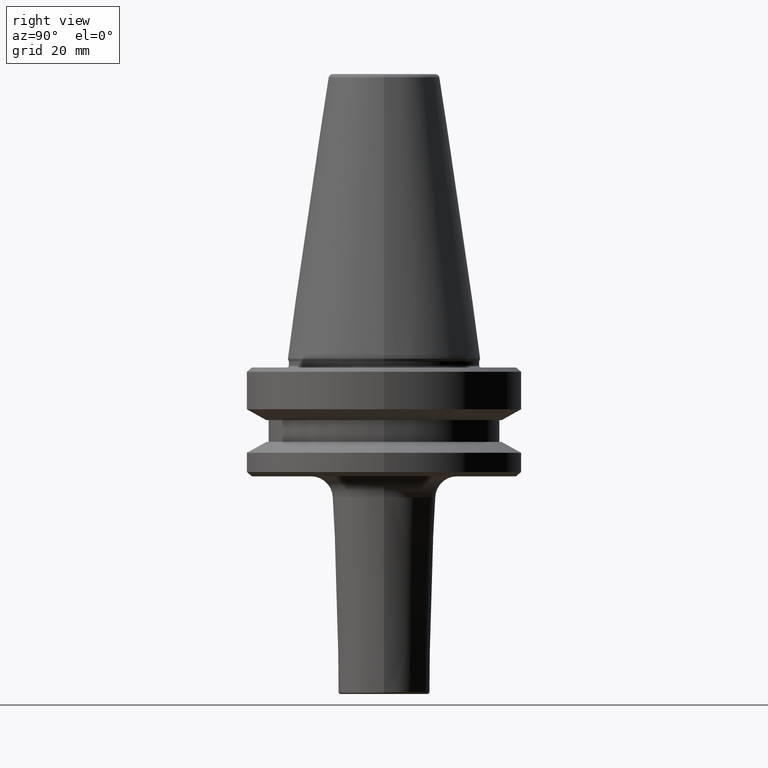
[diagram: clean part render]
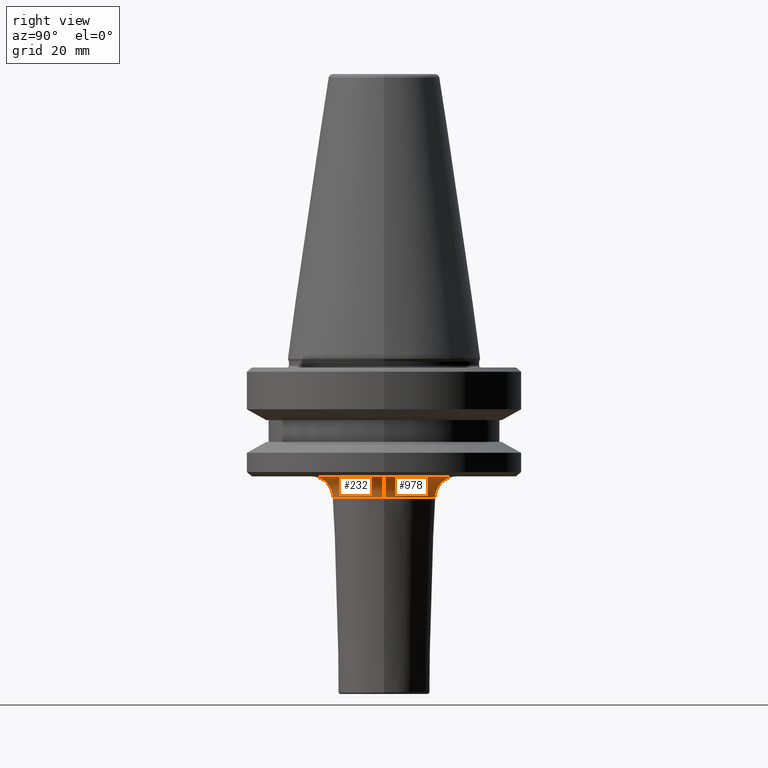
[diagram: same view with one multi-face feature highlighted, each face labeled with its STEP entity id]
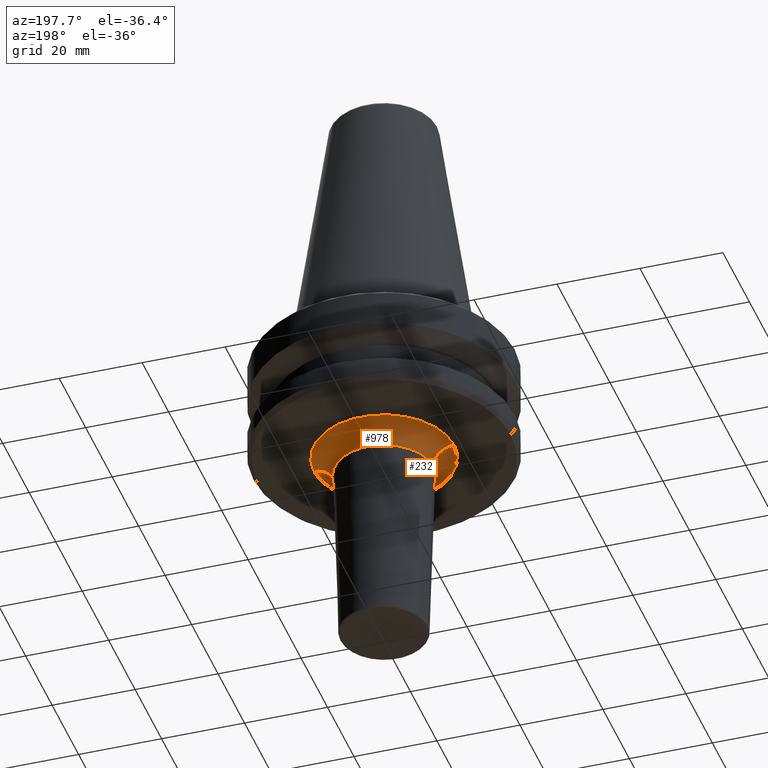
[diagram: same view with one multi-face feature highlighted, each face labeled with its STEP entity id]
A machine part, right view. The highlighted faces form ONE feature: a constant-radius fillet chain: 2 tangent blend faces with common blend radius 5 mm. The faces share edges in the B-rep.
A second angle (auxiliary view) of the same feature is appended — it is thin or edge-on in the first view.
Their STEP definitions:
[1] entity #232 (Torus):
#22 = DIRECTION ( 'NONE',  ( -0.0000000000000000000, -0.0000000000000000000, 1.000000000000000000 ) ) ;
#50 = ORIENTED_EDGE ( 'NONE', *, *, #578, .F. ) ;
#72 = CIRCLE ( 'NONE', #778, 11.85449797636584700 ) ;
#85 = DIRECTION ( 'NONE',  ( 1.000000000000000000, 0.0000000000000000000, 0.0000000000000000000 ) ) ;
#139 = AXIS2_PLACEMENT_3D ( 'NONE', #509, #192, #685 ) ;
#188 = CARTESIAN_POINT ( 'NONE',  ( -16.85224949397768400, 2.063805340123237800E-015, -92.40000000000803500 ) ) ;
#192 = DIRECTION ( 'NONE',  ( 1.224646799147353200E-016, 1.000000000000000000, 0.0000000000000000000 ) ) ;
#216 = AXIS2_PLACEMENT_3D ( 'NONE', #602, #569, #85 ) ;
#232 = ADVANCED_FACE ( 'NONE', ( #394 ), #830, .F. ) ;
#253 = EDGE_LOOP ( 'NONE', ( #969, #262, #817, #50 ) ) ;
#262 = ORIENTED_EDGE ( 'NONE', *, *, #824, .T. ) ;
#285 = CIRCLE ( 'NONE', #139, 5.000000000000011500 ) ;
#313 = EDGE_CURVE ( 'NONE', #865, #410, #72, .T. ) ;
#324 = VERTEX_POINT ( 'NONE', #364 ) ;
#364 = CARTESIAN_POINT ( 'NONE',  ( 16.85224949397768400, 0.0000000000000000000, -92.40000000000803500 ) ) ;
#380 = CARTESIAN_POINT ( 'NONE',  ( 0.0000000000000000000, 0.0000000000000000000, -97.40000000000803500 ) ) ;
#386 = EDGE_CURVE ( 'NONE', #622, #324, #827, .T. ) ;
#394 = FACE_OUTER_BOUND ( 'NONE', #253, .T. ) ;
#410 = VERTEX_POINT ( 'NONE', #834 ) ;
#441 = DIRECTION ( 'NONE',  ( 0.0000000000000000000, 0.0000000000000000000, -1.000000000000000000 ) ) ;
#457 = CIRCLE ( 'NONE', #467, 5.000000000000004400 ) ;
#467 = AXIS2_PLACEMENT_3D ( 'NONE', #514, #522, #441 ) ;
#506 = CARTESIAN_POINT ( 'NONE',  ( 0.0000000000000000000, 0.0000000000000000000, -97.25006745447970500 ) ) ;
#509 = CARTESIAN_POINT ( 'NONE',  ( -16.85224949397768400, 2.063805340123237800E-015, -97.40000000000803500 ) ) ;
#514 = CARTESIAN_POINT ( 'NONE',  ( 16.85224949397768400, 0.0000000000000000000, -97.40000000000803500 ) ) ;
#522 = DIRECTION ( 'NONE',  ( 0.0000000000000000000, -1.000000000000000000, 0.0000000000000000000 ) ) ;
#561 = DIRECTION ( 'NONE',  ( 1.000000000000000000, 0.0000000000000000000, 0.0000000000000000000 ) ) ;
#569 = DIRECTION ( 'NONE',  ( -0.0000000000000000000, -0.0000000000000000000, 1.000000000000000000 ) ) ;
#578 = EDGE_CURVE ( 'NONE', #324, #410, #457, .T. ) ;
#584 = DIRECTION ( 'NONE',  ( 1.000000000000000000, 0.0000000000000000000, 0.0000000000000000000 ) ) ;
#599 = CARTESIAN_POINT ( 'NONE',  ( -11.85449797636584700, 1.757781320174379400E-015, -97.25006745447970500 ) ) ;
#602 = CARTESIAN_POINT ( 'NONE',  ( 0.0000000000000000000, 0.0000000000000000000, -92.40000000000802100 ) ) ;
#622 = VERTEX_POINT ( 'NONE', #188 ) ;
#685 = DIRECTION ( 'NONE',  ( -1.000000000000000000, 1.224646799147353000E-016, 0.0000000000000000000 ) ) ;
#778 = AXIS2_PLACEMENT_3D ( 'NONE', #506, #22, #584 ) ;
#801 = AXIS2_PLACEMENT_3D ( 'NONE', #380, #860, #561 ) ;
#817 = ORIENTED_EDGE ( 'NONE', *, *, #313, .T. ) ;
#824 = EDGE_CURVE ( 'NONE', #622, #865, #285, .T. ) ;
#827 = CIRCLE ( 'NONE', #216, 16.85224949397768400 ) ;
#830 = TOROIDAL_SURFACE ( 'NONE', #801, 16.85224949397768400, 5.000000000000010700 ) ;
#834 = CARTESIAN_POINT ( 'NONE',  ( 11.85449797636584700, 0.0000000000000000000, -97.25006745447970500 ) ) ;
#860 = DIRECTION ( 'NONE',  ( -0.0000000000000000000, -0.0000000000000000000, 1.000000000000000000 ) ) ;
#865 = VERTEX_POINT ( 'NONE', #599 ) ;
#969 = ORIENTED_EDGE ( 'NONE', *, *, #386, .F. ) ;
[2] entity #978 (Torus):
#33 = CARTESIAN_POINT ( 'NONE',  ( 0.0000000000000000000, 0.0000000000000000000, -92.40000000000802100 ) ) ;
#64 = CARTESIAN_POINT ( 'NONE',  ( 0.0000000000000000000, 0.0000000000000000000, -97.40000000000803500 ) ) ;
#76 = DIRECTION ( 'NONE',  ( -0.0000000000000000000, -0.0000000000000000000, 1.000000000000000000 ) ) ;
#92 = DIRECTION ( 'NONE',  ( 1.000000000000000000, 0.0000000000000000000, 0.0000000000000000000 ) ) ;
#103 = EDGE_CURVE ( 'NONE', #410, #865, #418, .T. ) ;
#139 = AXIS2_PLACEMENT_3D ( 'NONE', #509, #192, #685 ) ;
#187 = FACE_OUTER_BOUND ( 'NONE', #799, .T. ) ;
#188 = CARTESIAN_POINT ( 'NONE',  ( -16.85224949397768400, 2.063805340123237800E-015, -92.40000000000803500 ) ) ;
#192 = DIRECTION ( 'NONE',  ( 1.224646799147353200E-016, 1.000000000000000000, 0.0000000000000000000 ) ) ;
#236 = TOROIDAL_SURFACE ( 'NONE', #763, 16.85224949397768400, 5.000000000000010700 ) ;
#283 = DIRECTION ( 'NONE',  ( -0.0000000000000000000, -0.0000000000000000000, 1.000000000000000000 ) ) ;
#285 = CIRCLE ( 'NONE', #139, 5.000000000000011500 ) ;
#324 = VERTEX_POINT ( 'NONE', #364 ) ;
#364 = CARTESIAN_POINT ( 'NONE',  ( 16.85224949397768400, 0.0000000000000000000, -92.40000000000803500 ) ) ;
#389 = ORIENTED_EDGE ( 'NONE', *, *, #103, .T. ) ;
#410 = VERTEX_POINT ( 'NONE', #834 ) ;
#418 = CIRCLE ( 'NONE', #589, 11.85449797636584700 ) ;
#428 = ORIENTED_EDGE ( 'NONE', *, *, #452, .F. ) ;
#441 = DIRECTION ( 'NONE',  ( 0.0000000000000000000, 0.0000000000000000000, -1.000000000000000000 ) ) ;
#452 = EDGE_CURVE ( 'NONE', #324, #622, #553, .T. ) ;
#457 = CIRCLE ( 'NONE', #467, 5.000000000000004400 ) ;
#467 = AXIS2_PLACEMENT_3D ( 'NONE', #514, #522, #441 ) ;
#509 = CARTESIAN_POINT ( 'NONE',  ( -16.85224949397768400, 2.063805340123237800E-015, -97.40000000000803500 ) ) ;
#514 = CARTESIAN_POINT ( 'NONE',  ( 16.85224949397768400, 0.0000000000000000000, -97.40000000000803500 ) ) ;
#522 = DIRECTION ( 'NONE',  ( 0.0000000000000000000, -1.000000000000000000, 0.0000000000000000000 ) ) ;
#527 = CARTESIAN_POINT ( 'NONE',  ( 0.0000000000000000000, 0.0000000000000000000, -97.25006745447970500 ) ) ;
#553 = CIRCLE ( 'NONE', #621, 16.85224949397768400 ) ;
#578 = EDGE_CURVE ( 'NONE', #324, #410, #457, .T. ) ;
#589 = AXIS2_PLACEMENT_3D ( 'NONE', #527, #283, #854 ) ;
#599 = CARTESIAN_POINT ( 'NONE',  ( -11.85449797636584700, 1.757781320174379400E-015, -97.25006745447970500 ) ) ;
#606 = DIRECTION ( 'NONE',  ( 1.000000000000000000, 0.0000000000000000000, 0.0000000000000000000 ) ) ;
#614 = ORIENTED_EDGE ( 'NONE', *, *, #824, .F. ) ;
#621 = AXIS2_PLACEMENT_3D ( 'NONE', #33, #848, #606 ) ;
#622 = VERTEX_POINT ( 'NONE', #188 ) ;
#685 = DIRECTION ( 'NONE',  ( -1.000000000000000000, 1.224646799147353000E-016, 0.0000000000000000000 ) ) ;
#763 = AXIS2_PLACEMENT_3D ( 'NONE', #64, #76, #92 ) ;
#799 = EDGE_LOOP ( 'NONE', ( #614, #428, #961, #389 ) ) ;
#824 = EDGE_CURVE ( 'NONE', #622, #865, #285, .T. ) ;
#834 = CARTESIAN_POINT ( 'NONE',  ( 11.85449797636584700, 0.0000000000000000000, -97.25006745447970500 ) ) ;
#848 = DIRECTION ( 'NONE',  ( -0.0000000000000000000, -0.0000000000000000000, 1.000000000000000000 ) ) ;
#854 = DIRECTION ( 'NONE',  ( 1.000000000000000000, 0.0000000000000000000, 0.0000000000000000000 ) ) ;
#865 = VERTEX_POINT ( 'NONE', #599 ) ;
#961 = ORIENTED_EDGE ( 'NONE', *, *, #578, .T. ) ;
#978 = ADVANCED_FACE ( 'NONE', ( #187 ), #236, .F. ) ;